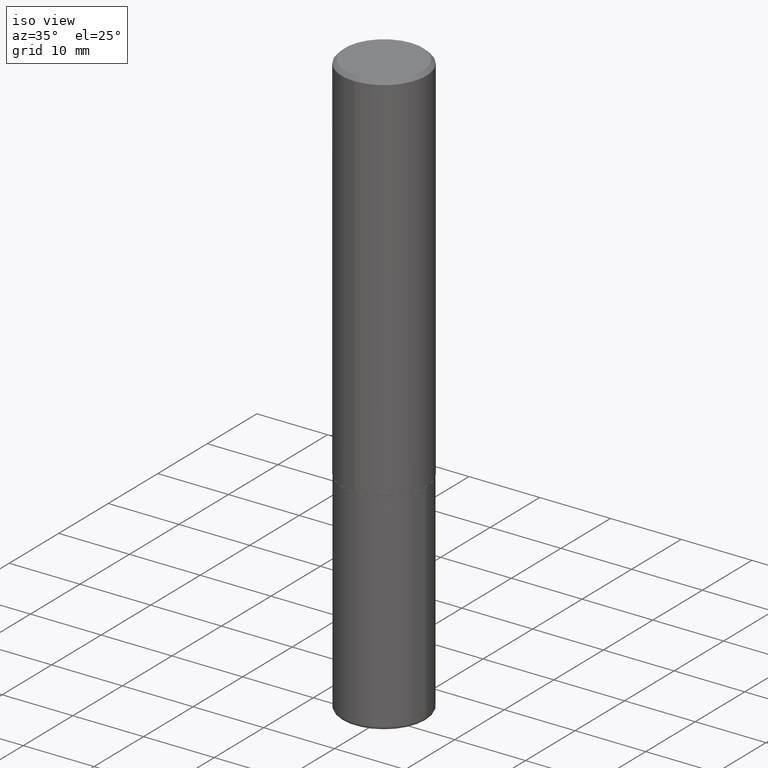
[diagram: clean part render]
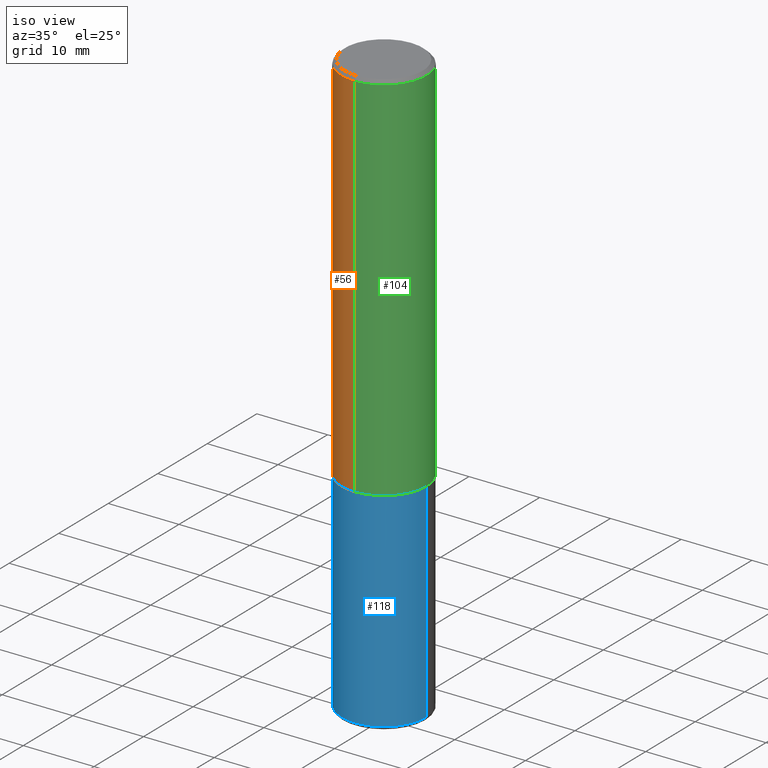
[diagram: same view with three faces highlighted in distinct colors, each labeled with its STEP entity id]
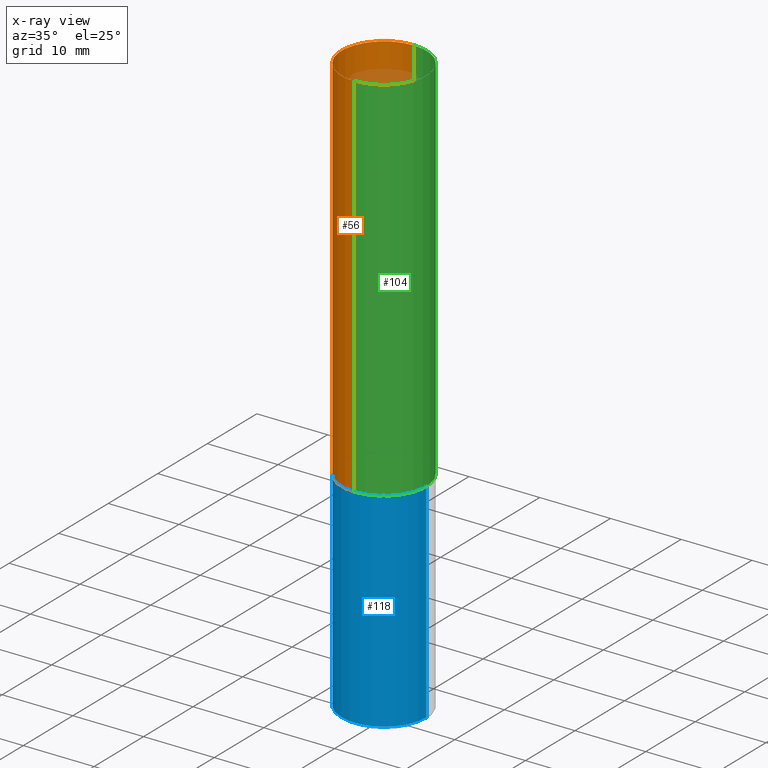
[diagram: x-ray of the same camera — body ghosted, the three highlighted faces saturated]
A machine part, iso view with three faces highlighted in distinct colors.
The next image is the same camera in x-ray (body ghosted, the three faces saturated) — at least one of them is partly hidden behind the body in this view.
Their STEP definitions:

[orange] entity #56 — the highlighted cylindrical surface (partial cylindrical patch) has radius 5.9995 mm, axis along (-0, 0, 1).
#9 = ORIENTED_EDGE ( 'NONE', *, *, #202, .T. ) ;
#11 = AXIS2_PLACEMENT_3D ( 'NONE', #412, #222, #58 ) ;
#23 = ORIENTED_EDGE ( 'NONE', *, *, #60, .F. ) ;
#26 = VECTOR ( 'NONE', #225, 39.37007874015748143 ) ;
#46 = VERTEX_POINT ( 'NONE', #75 ) ;
#56 = ADVANCED_FACE ( 'NONE', ( #223 ), #186, .T. ) ;
#58 = DIRECTION ( 'NONE',  ( -6.982962677686265922E-15, -1.000000000000000000, 3.491947543401872647E-15 ) ) ;
#60 = EDGE_CURVE ( 'NONE', #46, #281, #64, .T. ) ;
#64 = CIRCLE ( 'NONE', #393, 0.2361999999999999655 ) ;
#75 = CARTESIAN_POINT ( 'NONE',  ( 1.649375784469496131E-15, 0.2361999999999998823, -0.02000000000000087472 ) ) ;
#83 = DIRECTION ( 'NONE',  ( -6.982962677686265922E-15, -1.000000000000000000, 3.487819265831412139E-15 ) ) ;
#85 = ORIENTED_EDGE ( 'NONE', *, *, #376, .T. ) ;
#87 = DIRECTION ( 'NONE',  ( -2.445143257281760563E-29, 3.491947543401872647E-15, 1.000000000000000000 ) ) ;
#93 = EDGE_LOOP ( 'NONE', ( #245, #85, #9, #23 ) ) ;
#116 = VERTEX_POINT ( 'NONE', #276 ) ;
#119 = LINE ( 'NONE', #382, #339 ) ;
#132 = EDGE_CURVE ( 'NONE', #116, #46, #119, .T. ) ;
#133 = CARTESIAN_POINT ( 'NONE',  ( -1.649375784469446630E-15, -0.2362000000000075151, -2.085599999999999010 ) ) ;
#186 = CYLINDRICAL_SURFACE ( 'NONE', #11, 0.2362000000000001043 ) ;
#192 = DIRECTION ( 'NONE',  ( -2.445143257281760843E-29, 3.491947543401873041E-15, 1.000000000000000000 ) ) ;
#202 = EDGE_CURVE ( 'NONE', #367, #281, #282, .T. ) ;
#222 = DIRECTION ( 'NONE',  ( -2.445143257281760563E-29, 3.491947543401872647E-15, 1.000000000000000000 ) ) ;
#223 = FACE_OUTER_BOUND ( 'NONE', #93, .T. ) ;
#225 = DIRECTION ( 'NONE',  ( -2.445143257281760843E-29, 3.491947543401873041E-15, 1.000000000000000000 ) ) ;
#245 = ORIENTED_EDGE ( 'NONE', *, *, #132, .F. ) ;
#249 = CARTESIAN_POINT ( 'NONE',  ( 4.890286514563534438E-31, -6.983895086803762550E-17, -0.02000000000000005246 ) ) ;
#261 = CARTESIAN_POINT ( 'NONE',  ( 5.099590777386840224E-29, -7.282805796518945829E-15, -2.085599999999999898 ) ) ;
#262 = CARTESIAN_POINT ( 'NONE',  ( -1.620449627073634881E-15, -0.2362000000000000210, -0.01999999999999922673 ) ) ;
#276 = CARTESIAN_POINT ( 'NONE',  ( 1.678301941865383215E-15, 0.2361999999999929711, -2.085600000000000787 ) ) ;
#281 = VERTEX_POINT ( 'NONE', #262 ) ;
#282 = LINE ( 'NONE', #384, #26 ) ;
#325 = DIRECTION ( 'NONE',  ( -6.982962677686265922E-15, -1.000000000000000000, 3.469747663417773452E-15 ) ) ;
#333 = CIRCLE ( 'NONE', #405, 0.2362000000000002431 ) ;
#339 = VECTOR ( 'NONE', #192, 39.37007874015748143 ) ;
#367 = VERTEX_POINT ( 'NONE', #133 ) ;
#376 = EDGE_CURVE ( 'NONE', #116, #367, #333, .T. ) ;
#382 = CARTESIAN_POINT ( 'NONE',  ( 1.678301941865357183E-15, 0.2362000000000001043, -8.247980097515226939E-16 ) ) ;
#384 = CARTESIAN_POINT ( 'NONE',  ( -1.649375784469496722E-15, -0.2362000000000001043, 8.247980097515226939E-16 ) ) ;
#392 = DIRECTION ( 'NONE',  ( -2.445143257281760563E-29, 3.491947543401872647E-15, 1.000000000000000000 ) ) ;
#393 = AXIS2_PLACEMENT_3D ( 'NONE', #249, #87, #83 ) ;
#405 = AXIS2_PLACEMENT_3D ( 'NONE', #261, #392, #325 ) ;
#412 = CARTESIAN_POINT ( 'NONE',  ( 0.000000000000000000, 0.000000000000000000, 0.000000000000000000 ) ) ;

[blue] entity #118 — the highlighted cylindrical surface (partial cylindrical patch) has radius 5.9995 mm, axis along (-0, 0, 1).
#12 = VECTOR ( 'NONE', #373, 39.37007874015748143 ) ;
#19 = CIRCLE ( 'NONE', #302, 0.2361999999999999933 ) ;
#25 = CARTESIAN_POINT ( 'NONE',  ( -0.2361999999999999933, -7.634526233230966520E-15, -2.086600000000000232 ) ) ;
#28 = DIRECTION ( 'NONE',  ( 1.000000000000000000, -6.982962677686265133E-15, 0.000000000000000000 ) ) ;
#29 = CARTESIAN_POINT ( 'NONE',  ( 5.102715210985906276E-29, -7.285324961630107416E-15, -2.086600000000000232 ) ) ;
#42 = LINE ( 'NONE', #212, #162 ) ;
#49 = CARTESIAN_POINT ( 'NONE',  ( 0.2361999999999999933, -1.649375784469496131E-15, 1.151752954443000088E-29 ) ) ;
#50 = CARTESIAN_POINT ( 'NONE',  ( -0.2362000000000000766, -9.662029446697182017E-15, -3.248000000000000220 ) ) ;
#88 = EDGE_CURVE ( 'NONE', #190, #107, #191, .T. ) ;
#107 = VERTEX_POINT ( 'NONE', #151 ) ;
#114 = ORIENTED_EDGE ( 'NONE', *, *, #197, .T. ) ;
#118 = ADVANCED_FACE ( 'NONE', ( #253 ), #311, .T. ) ;
#125 = DIRECTION ( 'NONE',  ( 1.000000000000000000, -6.982962677686266711E-15, 4.876176775795936353E-29 ) ) ;
#126 = VERTEX_POINT ( 'NONE', #50 ) ;
#142 = VERTEX_POINT ( 'NONE', #155 ) ;
#143 = DIRECTION ( 'NONE',  ( -2.445468806185136877E-29, 3.491481338843145188E-15, 1.000000000000000000 ) ) ;
#146 = LINE ( 'NONE', #49, #12 ) ;
#151 = CARTESIAN_POINT ( 'NONE',  ( 0.2361999999999999933, -8.934700746099602364E-15, -2.086600000000000232 ) ) ;
#154 = DIRECTION ( 'NONE',  ( 1.000000000000000000, -6.982962677686265133E-15, 0.000000000000000000 ) ) ;
#155 = CARTESIAN_POINT ( 'NONE',  ( 0.2362000000000000766, -1.298970717303203651E-14, -3.248000000000000220 ) ) ;
#162 = VECTOR ( 'NONE', #143, 39.37007874015748143 ) ;
#187 = ORIENTED_EDGE ( 'NONE', *, *, #88, .F. ) ;
#190 = VERTEX_POINT ( 'NONE', #25 ) ;
#191 = CIRCLE ( 'NONE', #250, 0.2361999999999999933 ) ;
#197 = EDGE_CURVE ( 'NONE', #126, #142, #19, .T. ) ;
#212 = CARTESIAN_POINT ( 'NONE',  ( -0.2361999999999999933, 1.678301941865356591E-15, -1.161852468318208757E-29 ) ) ;
#250 = AXIS2_PLACEMENT_3D ( 'NONE', #29, #317, #154 ) ;
#252 = DIRECTION ( 'NONE',  ( -2.445468806185136597E-29, 3.491481338843145583E-15, 1.000000000000000000 ) ) ;
#253 = FACE_OUTER_BOUND ( 'NONE', #272, .T. ) ;
#272 = EDGE_LOOP ( 'NONE', ( #374, #114, #369, #187 ) ) ;
#296 = AXIS2_PLACEMENT_3D ( 'NONE', #414, #252, #125 ) ;
#302 = AXIS2_PLACEMENT_3D ( 'NONE', #383, #345, #28 ) ;
#311 = CYLINDRICAL_SURFACE ( 'NONE', #296, 0.2361999999999999933 ) ;
#317 = DIRECTION ( 'NONE',  ( -2.445468806185136597E-29, 3.491481338843145583E-15, 1.000000000000000000 ) ) ;
#345 = DIRECTION ( 'NONE',  ( -2.445468806185136597E-29, 3.491481338843145583E-15, 1.000000000000000000 ) ) ;
#369 = ORIENTED_EDGE ( 'NONE', *, *, #406, .T. ) ;
#373 = DIRECTION ( 'NONE',  ( -2.445468806185136877E-29, 3.491481338843145188E-15, 1.000000000000000000 ) ) ;
#374 = ORIENTED_EDGE ( 'NONE', *, *, #403, .F. ) ;
#383 = CARTESIAN_POINT ( 'NONE',  ( 7.942882682489324976E-29, -1.134033138856253841E-14, -3.248000000000000220 ) ) ;
#403 = EDGE_CURVE ( 'NONE', #126, #190, #42, .T. ) ;
#406 = EDGE_CURVE ( 'NONE', #142, #107, #146, .T. ) ;
#414 = CARTESIAN_POINT ( 'NONE',  ( 0.000000000000000000, 0.000000000000000000, 0.000000000000000000 ) ) ;

[green] entity #104 — the highlighted cylindrical surface (partial cylindrical patch) has radius 5.9995 mm, axis along (-0, 0, 1).
#21 = DIRECTION ( 'NONE',  ( -6.982962677686265922E-15, -1.000000000000000000, 3.469747663417773452E-15 ) ) ;
#26 = VECTOR ( 'NONE', #225, 39.37007874015748143 ) ;
#43 = DIRECTION ( 'NONE',  ( -2.445143257281760563E-29, 3.491947543401872647E-15, 1.000000000000000000 ) ) ;
#46 = VERTEX_POINT ( 'NONE', #75 ) ;
#48 = EDGE_CURVE ( 'NONE', #367, #116, #213, .T. ) ;
#75 = CARTESIAN_POINT ( 'NONE',  ( 1.649375784469496131E-15, 0.2361999999999998823, -0.02000000000000087472 ) ) ;
#98 = AXIS2_PLACEMENT_3D ( 'NONE', #332, #43, #21 ) ;
#100 = ORIENTED_EDGE ( 'NONE', *, *, #169, .F. ) ;
#104 = ADVANCED_FACE ( 'NONE', ( #341 ), #410, .T. ) ;
#115 = AXIS2_PLACEMENT_3D ( 'NONE', #121, #416, #251 ) ;
#116 = VERTEX_POINT ( 'NONE', #276 ) ;
#119 = LINE ( 'NONE', #382, #339 ) ;
#121 = CARTESIAN_POINT ( 'NONE',  ( 4.890286514563534438E-31, -6.983895086803762550E-17, -0.02000000000000005246 ) ) ;
#132 = EDGE_CURVE ( 'NONE', #116, #46, #119, .T. ) ;
#133 = CARTESIAN_POINT ( 'NONE',  ( -1.649375784469446630E-15, -0.2362000000000075151, -2.085599999999999010 ) ) ;
#169 = EDGE_CURVE ( 'NONE', #281, #46, #380, .T. ) ;
#188 = DIRECTION ( 'NONE',  ( -2.445143257281760563E-29, 3.491947543401872647E-15, 1.000000000000000000 ) ) ;
#192 = DIRECTION ( 'NONE',  ( -2.445143257281760843E-29, 3.491947543401873041E-15, 1.000000000000000000 ) ) ;
#202 = EDGE_CURVE ( 'NONE', #367, #281, #282, .T. ) ;
#213 = CIRCLE ( 'NONE', #98, 0.2362000000000002431 ) ;
#214 = ORIENTED_EDGE ( 'NONE', *, *, #132, .T. ) ;
#225 = DIRECTION ( 'NONE',  ( -2.445143257281760843E-29, 3.491947543401873041E-15, 1.000000000000000000 ) ) ;
#251 = DIRECTION ( 'NONE',  ( -6.982962677686265922E-15, -1.000000000000000000, 3.487819265831412139E-15 ) ) ;
#257 = AXIS2_PLACEMENT_3D ( 'NONE', #377, #188, #379 ) ;
#262 = CARTESIAN_POINT ( 'NONE',  ( -1.620449627073634881E-15, -0.2362000000000000210, -0.01999999999999922673 ) ) ;
#276 = CARTESIAN_POINT ( 'NONE',  ( 1.678301941865383215E-15, 0.2361999999999929711, -2.085600000000000787 ) ) ;
#281 = VERTEX_POINT ( 'NONE', #262 ) ;
#282 = LINE ( 'NONE', #384, #26 ) ;
#314 = ORIENTED_EDGE ( 'NONE', *, *, #202, .F. ) ;
#332 = CARTESIAN_POINT ( 'NONE',  ( 5.099590777386840224E-29, -7.282805796518945829E-15, -2.085599999999999898 ) ) ;
#339 = VECTOR ( 'NONE', #192, 39.37007874015748143 ) ;
#341 = FACE_OUTER_BOUND ( 'NONE', #370, .T. ) ;
#367 = VERTEX_POINT ( 'NONE', #133 ) ;
#370 = EDGE_LOOP ( 'NONE', ( #387, #214, #100, #314 ) ) ;
#377 = CARTESIAN_POINT ( 'NONE',  ( 0.000000000000000000, 0.000000000000000000, 0.000000000000000000 ) ) ;
#379 = DIRECTION ( 'NONE',  ( -6.982962677686265922E-15, -1.000000000000000000, 3.491947543401872647E-15 ) ) ;
#380 = CIRCLE ( 'NONE', #115, 0.2361999999999999655 ) ;
#382 = CARTESIAN_POINT ( 'NONE',  ( 1.678301941865357183E-15, 0.2362000000000001043, -8.247980097515226939E-16 ) ) ;
#384 = CARTESIAN_POINT ( 'NONE',  ( -1.649375784469496722E-15, -0.2362000000000001043, 8.247980097515226939E-16 ) ) ;
#387 = ORIENTED_EDGE ( 'NONE', *, *, #48, .T. ) ;
#410 = CYLINDRICAL_SURFACE ( 'NONE', #257, 0.2362000000000001043 ) ;
#416 = DIRECTION ( 'NONE',  ( -2.445143257281760563E-29, 3.491947543401872647E-15, 1.000000000000000000 ) ) ;